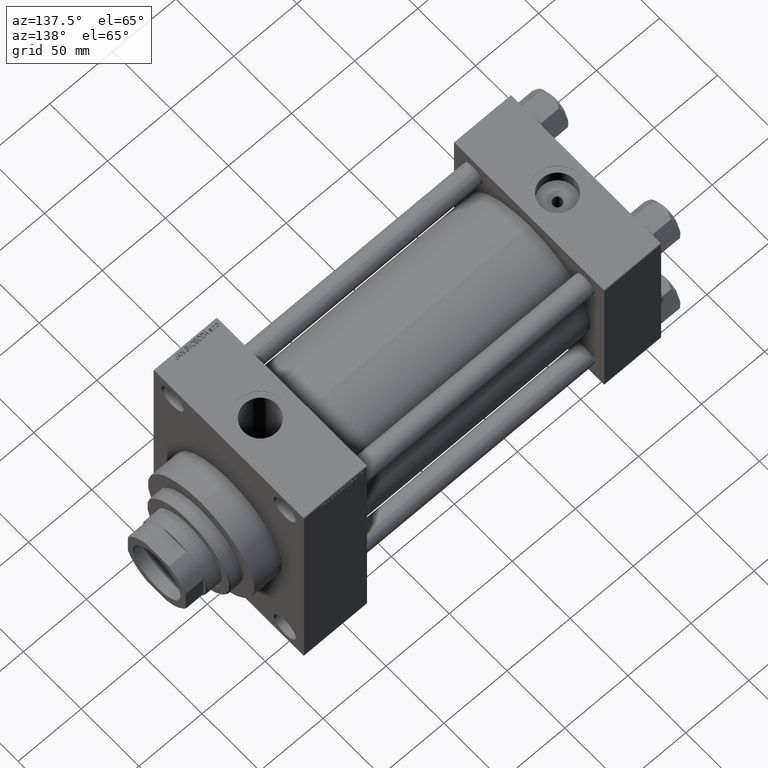
[diagram: clean part render]
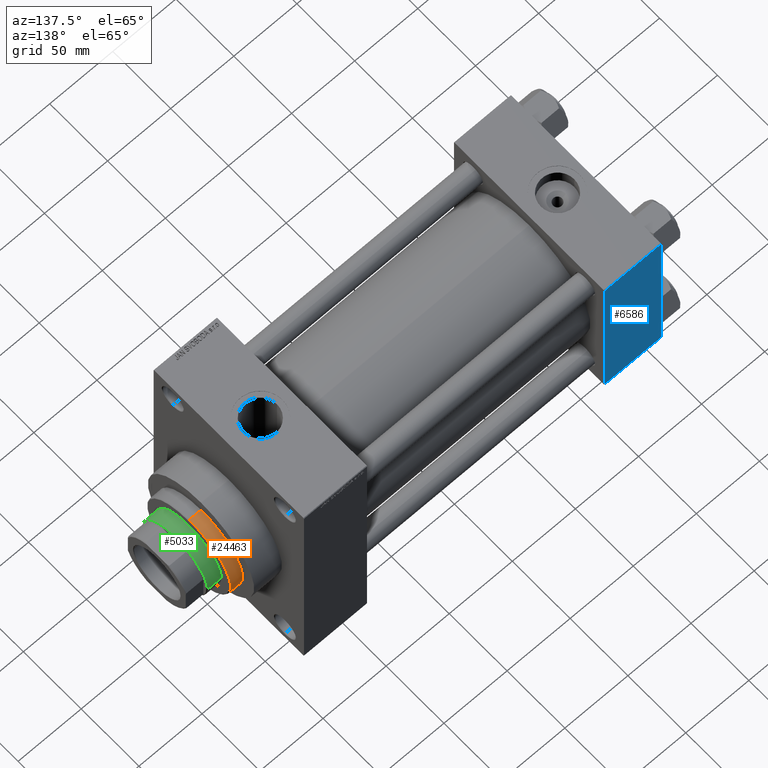
[diagram: same view with three faces highlighted in distinct colors, each labeled with its STEP entity id]
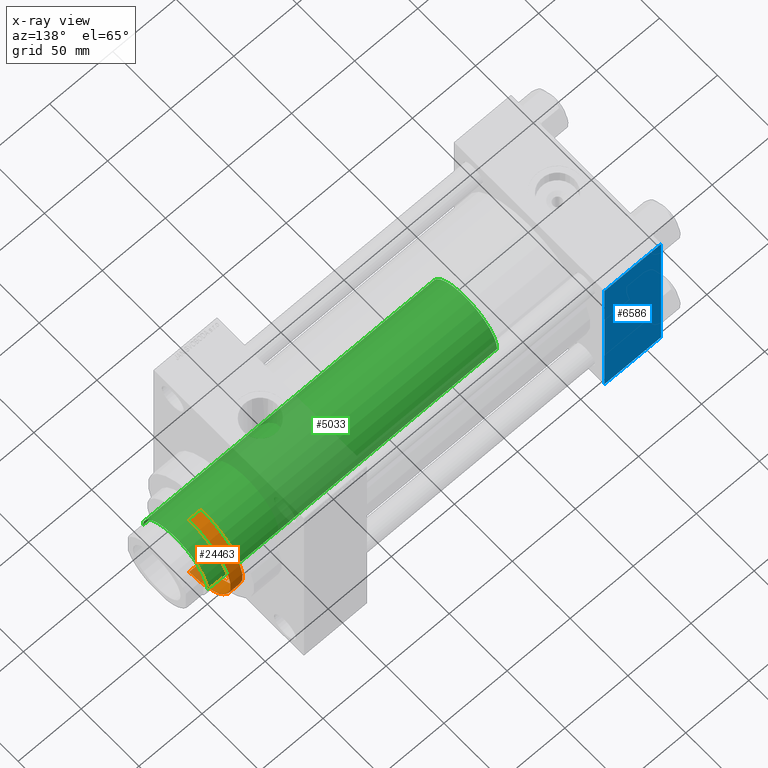
[diagram: x-ray of the same camera — body ghosted, the three highlighted faces saturated]
A machine part, auxiliary view with three faces highlighted in distinct colors.
The next image is the same camera in x-ray (body ghosted, the three faces saturated) — at least one of them is partly hidden behind the body in this view.
Their STEP definitions:

[orange] entity #24463 — the highlighted cylindrical surface (partial cylindrical patch) has radius 36 mm, axis along (-1, 0, 0).
#2633 = LINE ( 'NONE', #14427, #44199 ) ;
#3209 = VERTEX_POINT ( 'NONE', #21385 ) ;
#3668 = LINE ( 'NONE', #44963, #13262 ) ;
#5345 = ORIENTED_EDGE ( 'NONE', *, *, #32626, .T. ) ;
#8916 = CARTESIAN_POINT ( 'NONE',  ( 0.000000000000000000, 0.000000000000000000, 53.26000000000000512 ) ) ;
#9628 = DIRECTION ( 'NONE',  ( -1.000000000000000000, 0.000000000000000000, 0.000000000000000000 ) ) ;
#11871 = DIRECTION ( 'NONE',  ( -0.000000000000000000, -0.000000000000000000, -1.000000000000000000 ) ) ;
#12345 = CARTESIAN_POINT ( 'NONE',  ( 36.00000000000000000, 4.408728476930470856E-15, 52.76000000000001933 ) ) ;
#12652 = ORIENTED_EDGE ( 'NONE', *, *, #29446, .F. ) ;
#13016 = FACE_OUTER_BOUND ( 'NONE', #21983, .T. ) ;
#13247 = CYLINDRICAL_SURFACE ( 'NONE', #24766, 36.00000000000000000 ) ;
#13262 = VECTOR ( 'NONE', #11871, 1000.000000000000000 ) ;
#14427 = CARTESIAN_POINT ( 'NONE',  ( 36.00000000000000000, 4.408728476930470856E-15, 53.26000000000000512 ) ) ;
#15741 = AXIS2_PLACEMENT_3D ( 'NONE', #24859, #35978, #25328 ) ;
#15812 = AXIS2_PLACEMENT_3D ( 'NONE', #33242, #22371, #37608 ) ;
#19115 = ORIENTED_EDGE ( 'NONE', *, *, #23123, .T. ) ;
#21385 = CARTESIAN_POINT ( 'NONE',  ( 36.00000000000000000, 4.408728476930470856E-15, 43.25999999999999801 ) ) ;
#21972 = CARTESIAN_POINT ( 'NONE',  ( -36.00000000000000000, 0.000000000000000000, 43.25999999999999801 ) ) ;
#21983 = EDGE_LOOP ( 'NONE', ( #12652, #5345, #19115, #42794 ) ) ;
#22371 = DIRECTION ( 'NONE',  ( 0.000000000000000000, 0.000000000000000000, -1.000000000000000000 ) ) ;
#23123 = EDGE_CURVE ( 'NONE', #35208, #45321, #3668, .T. ) ;
#24463 = ADVANCED_FACE ( 'NONE', ( #13016 ), #13247, .T. ) ;
#24766 = AXIS2_PLACEMENT_3D ( 'NONE', #8916, #31117, #9628 ) ;
#24859 = CARTESIAN_POINT ( 'NONE',  ( 0.000000000000000000, 0.000000000000000000, 43.25999999999999801 ) ) ;
#25328 = DIRECTION ( 'NONE',  ( 1.000000000000000000, 0.000000000000000000, 0.000000000000000000 ) ) ;
#29446 = EDGE_CURVE ( 'NONE', #37213, #3209, #2633, .T. ) ;
#31117 = DIRECTION ( 'NONE',  ( -0.000000000000000000, -0.000000000000000000, -1.000000000000000000 ) ) ;
#31364 = EDGE_CURVE ( 'NONE', #45321, #3209, #32697, .T. ) ;
#32626 = EDGE_CURVE ( 'NONE', #37213, #35208, #36586, .T. ) ;
#32697 = CIRCLE ( 'NONE', #15741, 36.00000000000000000 ) ;
#33242 = CARTESIAN_POINT ( 'NONE',  ( 0.000000000000000000, 0.000000000000000000, 52.76000000000001933 ) ) ;
#35208 = VERTEX_POINT ( 'NONE', #40403 ) ;
#35978 = DIRECTION ( 'NONE',  ( 0.000000000000000000, 0.000000000000000000, 1.000000000000000000 ) ) ;
#36586 = CIRCLE ( 'NONE', #15812, 36.00000000000000000 ) ;
#37213 = VERTEX_POINT ( 'NONE', #12345 ) ;
#37608 = DIRECTION ( 'NONE',  ( 1.000000000000000000, 0.000000000000000000, 0.000000000000000000 ) ) ;
#40403 = CARTESIAN_POINT ( 'NONE',  ( -36.00000000000000000, 0.000000000000000000, 52.76000000000001933 ) ) ;
#42794 = ORIENTED_EDGE ( 'NONE', *, *, #31364, .T. ) ;
#44199 = VECTOR ( 'NONE', #47512, 1000.000000000000000 ) ;
#44963 = CARTESIAN_POINT ( 'NONE',  ( -36.00000000000000000, 0.000000000000000000, 53.26000000000000512 ) ) ;
#45321 = VERTEX_POINT ( 'NONE', #21972 ) ;
#47512 = DIRECTION ( 'NONE',  ( -0.000000000000000000, -0.000000000000000000, -1.000000000000000000 ) ) ;

[blue] entity #6586 — the highlighted planar face has unit normal (0, 1, 0).
#607 = VECTOR ( 'NONE', #25016, 1000.000000000000000 ) ;
#1912 = CARTESIAN_POINT ( 'NONE',  ( 45.00000000000000000, 65.00000000000000000, 65.00000000000001421 ) ) ;
#2086 = CARTESIAN_POINT ( 'NONE',  ( 45.00000000000000000, 65.00000000000000000, 65.00000000000001421 ) ) ;
#3076 = LINE ( 'NONE', #35906, #607 ) ;
#3891 = CARTESIAN_POINT ( 'NONE',  ( 45.00000000000000000, 65.00000000000000000, 64.49999999999998579 ) ) ;
#4022 = VERTEX_POINT ( 'NONE', #3891 ) ;
#6152 = ORIENTED_EDGE ( 'NONE', *, *, #43625, .T. ) ;
#6586 = ADVANCED_FACE ( 'NONE', ( #8852 ), #27661, .T. ) ;
#7521 = VECTOR ( 'NONE', #16865, 1000.000000000000000 ) ;
#8852 = FACE_OUTER_BOUND ( 'NONE', #26597, .T. ) ;
#9608 = AXIS2_PLACEMENT_3D ( 'NONE', #2086, #35382, #42177 ) ;
#11108 = VERTEX_POINT ( 'NONE', #11942 ) ;
#11942 = CARTESIAN_POINT ( 'NONE',  ( 45.00000000000000000, 65.00000000000000000, -64.49999999999995737 ) ) ;
#14912 = DIRECTION ( 'NONE',  ( -1.000000000000000000, 0.000000000000000000, 0.000000000000000000 ) ) ;
#15899 = EDGE_CURVE ( 'NONE', #11108, #40410, #32772, .T. ) ;
#16865 = DIRECTION ( 'NONE',  ( 0.000000000000000000, 0.000000000000000000, -1.000000000000000000 ) ) ;
#18690 = ORIENTED_EDGE ( 'NONE', *, *, #31548, .T. ) ;
#22244 = ORIENTED_EDGE ( 'NONE', *, *, #43733, .F. ) ;
#22670 = CARTESIAN_POINT ( 'NONE',  ( 45.00000000000000000, 65.00000000000000000, 64.49999999999998579 ) ) ;
#22889 = VECTOR ( 'NONE', #14912, 1000.000000000000000 ) ;
#23856 = LINE ( 'NONE', #1912, #7521 ) ;
#25016 = DIRECTION ( 'NONE',  ( 0.000000000000000000, 0.000000000000000000, -1.000000000000000000 ) ) ;
#26051 = LINE ( 'NONE', #22670, #35788 ) ;
#26597 = EDGE_LOOP ( 'NONE', ( #6152, #46146, #22244, #18690 ) ) ;
#27661 = PLANE ( 'NONE',  #9608 ) ;
#28907 = CARTESIAN_POINT ( 'NONE',  ( 0.000000000000000000, 65.00000000000000000, -64.49999999999995737 ) ) ;
#31548 = EDGE_CURVE ( 'NONE', #44660, #4022, #26051, .T. ) ;
#32772 = LINE ( 'NONE', #44139, #22889 ) ;
#35382 = DIRECTION ( 'NONE',  ( -0.000000000000000000, 1.000000000000000000, 0.000000000000000000 ) ) ;
#35788 = VECTOR ( 'NONE', #44676, 1000.000000000000000 ) ;
#35906 = CARTESIAN_POINT ( 'NONE',  ( 0.000000000000000000, 65.00000000000000000, 65.00000000000001421 ) ) ;
#37110 = CARTESIAN_POINT ( 'NONE',  ( 0.000000000000000000, 65.00000000000000000, 64.49999999999998579 ) ) ;
#40410 = VERTEX_POINT ( 'NONE', #28907 ) ;
#42177 = DIRECTION ( 'NONE',  ( 0.000000000000000000, -0.000000000000000000, 1.000000000000000000 ) ) ;
#43625 = EDGE_CURVE ( 'NONE', #4022, #11108, #23856, .T. ) ;
#43733 = EDGE_CURVE ( 'NONE', #44660, #40410, #3076, .T. ) ;
#44139 = CARTESIAN_POINT ( 'NONE',  ( 45.00000000000000000, 65.00000000000000000, -64.49999999999995737 ) ) ;
#44660 = VERTEX_POINT ( 'NONE', #37110 ) ;
#44676 = DIRECTION ( 'NONE',  ( 1.000000000000000000, 0.000000000000000000, 0.000000000000000000 ) ) ;
#46146 = ORIENTED_EDGE ( 'NONE', *, *, #15899, .T. ) ;

[green] entity #5033 — the highlighted cylindrical surface (partial cylindrical patch) has radius 28 mm, axis along (-1, 0, 0).
#933 = VERTEX_POINT ( 'NONE', #18734 ) ;
#1715 = VERTEX_POINT ( 'NONE', #2367 ) ;
#2367 = CARTESIAN_POINT ( 'NONE',  ( 28.00000000000000000, 3.429011037612589276E-15, 280.5000000000000000 ) ) ;
#3627 = CARTESIAN_POINT ( 'NONE',  ( 28.00000000000000000, 3.429011037612589276E-15, 281.0000000000000000 ) ) ;
#3675 = DIRECTION ( 'NONE',  ( 0.000000000000000000, 0.000000000000000000, -1.000000000000000000 ) ) ;
#4433 = EDGE_CURVE ( 'NONE', #47335, #22648, #12037, .T. ) ;
#5033 = ADVANCED_FACE ( 'NONE', ( #35959 ), #13983, .T. ) ;
#6791 = EDGE_CURVE ( 'NONE', #1715, #47335, #19673, .T. ) ;
#6944 = CARTESIAN_POINT ( 'NONE',  ( -28.00000000000000000, 0.000000000000000000, 280.5000000000000000 ) ) ;
#12037 = LINE ( 'NONE', #15173, #47301 ) ;
#13827 = ORIENTED_EDGE ( 'NONE', *, *, #33666, .F. ) ;
#13983 = CYLINDRICAL_SURFACE ( 'NONE', #28076, 28.00000000000000000 ) ;
#15173 = CARTESIAN_POINT ( 'NONE',  ( -28.00000000000000000, 0.000000000000000000, 281.0000000000000000 ) ) ;
#16949 = ORIENTED_EDGE ( 'NONE', *, *, #6791, .T. ) ;
#18343 = LINE ( 'NONE', #3627, #35853 ) ;
#18734 = CARTESIAN_POINT ( 'NONE',  ( 28.00000000000000000, 3.429011037612589276E-15, 51.00000000000000000 ) ) ;
#19673 = CIRCLE ( 'NONE', #46670, 28.00000000000000000 ) ;
#22648 = VERTEX_POINT ( 'NONE', #47539 ) ;
#25194 = EDGE_LOOP ( 'NONE', ( #13827, #16949, #38859, #30223 ) ) ;
#25404 = EDGE_CURVE ( 'NONE', #22648, #933, #25556, .T. ) ;
#25556 = CIRCLE ( 'NONE', #32529, 28.00000000000000000 ) ;
#28076 = AXIS2_PLACEMENT_3D ( 'NONE', #32563, #28706, #47543 ) ;
#28706 = DIRECTION ( 'NONE',  ( -0.000000000000000000, -0.000000000000000000, -1.000000000000000000 ) ) ;
#29251 = CARTESIAN_POINT ( 'NONE',  ( 0.000000000000000000, 0.000000000000000000, 280.5000000000000000 ) ) ;
#29901 = DIRECTION ( 'NONE',  ( -0.000000000000000000, -0.000000000000000000, -1.000000000000000000 ) ) ;
#30223 = ORIENTED_EDGE ( 'NONE', *, *, #25404, .T. ) ;
#32529 = AXIS2_PLACEMENT_3D ( 'NONE', #42085, #39168, #35051 ) ;
#32563 = CARTESIAN_POINT ( 'NONE',  ( 0.000000000000000000, 0.000000000000000000, 281.0000000000000000 ) ) ;
#33666 = EDGE_CURVE ( 'NONE', #1715, #933, #18343, .T. ) ;
#35051 = DIRECTION ( 'NONE',  ( 1.000000000000000000, 0.000000000000000000, 0.000000000000000000 ) ) ;
#35853 = VECTOR ( 'NONE', #44683, 1000.000000000000000 ) ;
#35959 = FACE_OUTER_BOUND ( 'NONE', #25194, .T. ) ;
#38859 = ORIENTED_EDGE ( 'NONE', *, *, #4433, .T. ) ;
#39168 = DIRECTION ( 'NONE',  ( 0.000000000000000000, 0.000000000000000000, 1.000000000000000000 ) ) ;
#40865 = DIRECTION ( 'NONE',  ( 1.000000000000000000, 0.000000000000000000, 0.000000000000000000 ) ) ;
#42085 = CARTESIAN_POINT ( 'NONE',  ( 0.000000000000000000, 0.000000000000000000, 51.00000000000000000 ) ) ;
#44683 = DIRECTION ( 'NONE',  ( -0.000000000000000000, -0.000000000000000000, -1.000000000000000000 ) ) ;
#46670 = AXIS2_PLACEMENT_3D ( 'NONE', #29251, #3675, #40865 ) ;
#47301 = VECTOR ( 'NONE', #29901, 1000.000000000000000 ) ;
#47335 = VERTEX_POINT ( 'NONE', #6944 ) ;
#47539 = CARTESIAN_POINT ( 'NONE',  ( -28.00000000000000000, 0.000000000000000000, 51.00000000000000000 ) ) ;
#47543 = DIRECTION ( 'NONE',  ( -1.000000000000000000, 0.000000000000000000, 0.000000000000000000 ) ) ;